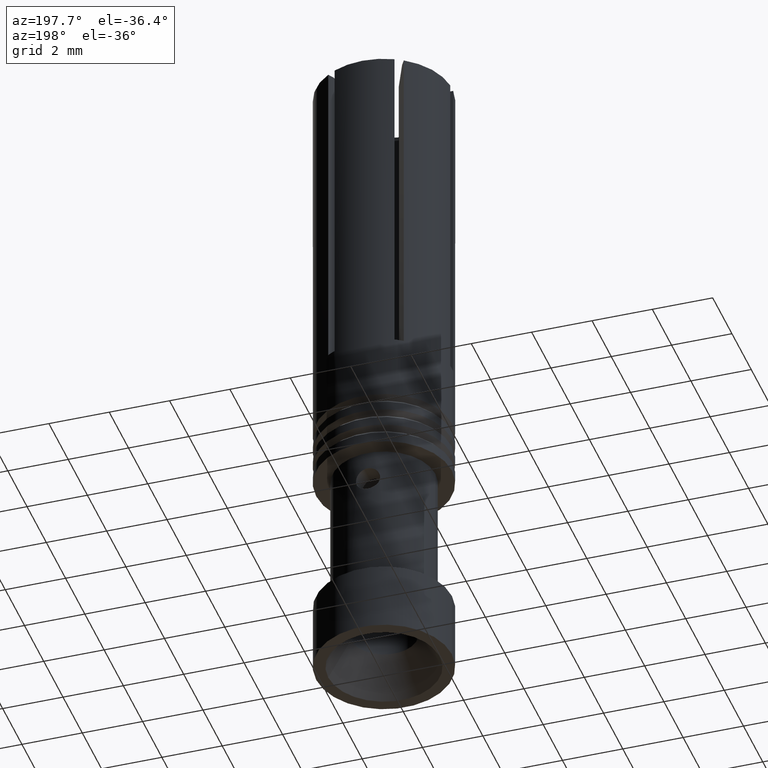
[diagram: clean part render]
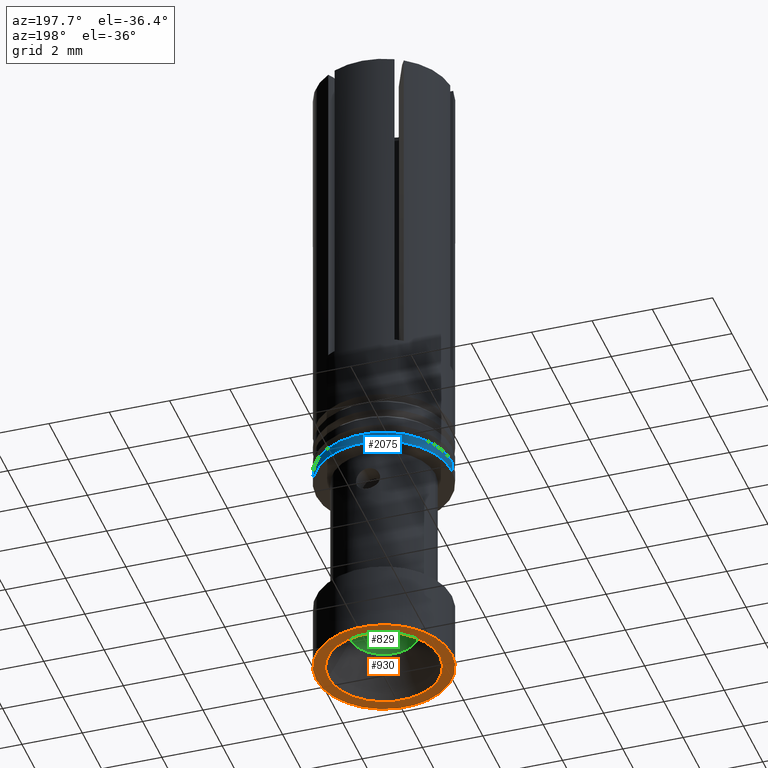
[diagram: same view with three faces highlighted in distinct colors, each labeled with its STEP entity id]
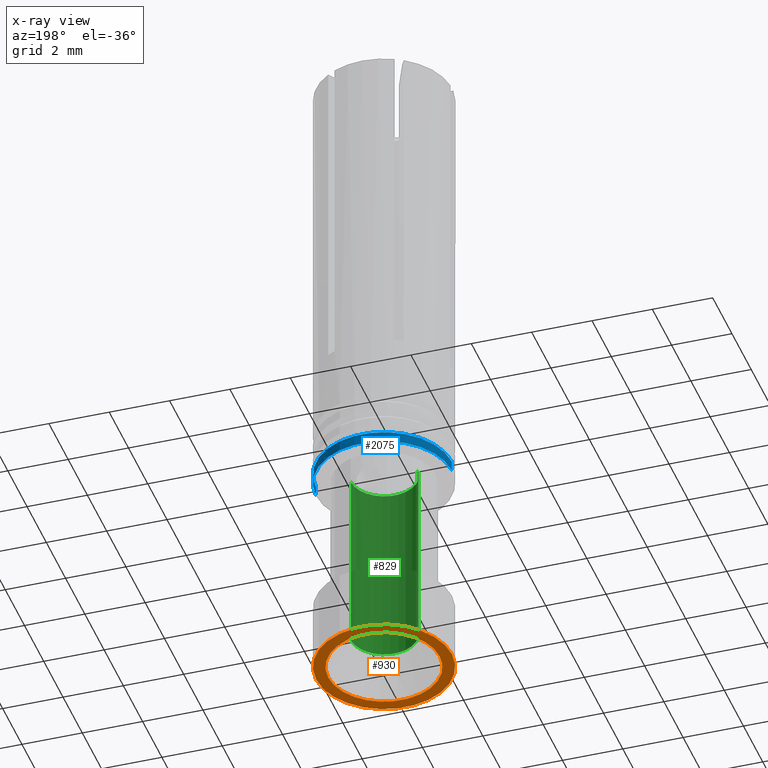
[diagram: x-ray of the same camera — body ghosted, the three highlighted faces saturated]
A machine part, auxiliary view with three faces highlighted in distinct colors.
The next image is the same camera in x-ray (body ghosted, the three faces saturated) — at least one of them is partly hidden behind the body in this view.
Their STEP definitions:

[orange] entity #930 — the highlighted planar face has unit normal (0, 0, -1).
#19 = AXIS2_PLACEMENT_3D ( 'NONE', #1542, #2044, #1874 ) ;
#93 = ORIENTED_EDGE ( 'NONE', *, *, #2128, .T. ) ;
#94 = EDGE_CURVE ( 'NONE', #1481, #842, #1304, .T. ) ;
#187 = CIRCLE ( 'NONE', #659, 1.850000000000000089 ) ;
#197 = ORIENTED_EDGE ( 'NONE', *, *, #94, .T. ) ;
#320 = AXIS2_PLACEMENT_3D ( 'NONE', #2027, #489, #1349 ) ;
#321 = CARTESIAN_POINT ( 'NONE',  ( 1.084202172485499997E-16, -1.084202172485499997E-16, 337.8000000000000114 ) ) ;
#371 = CARTESIAN_POINT ( 'NONE',  ( 0.000000000000000000, 0.000000000000000000, 337.8000000000000114 ) ) ;
#489 = DIRECTION ( 'NONE',  ( 0.000000000000000000, 0.000000000000000000, -1.000000000000000000 ) ) ;
#552 = EDGE_CURVE ( 'NONE', #1947, #2093, #810, .T. ) ;
#574 = EDGE_LOOP ( 'NONE', ( #197, #1780 ) ) ;
#659 = AXIS2_PLACEMENT_3D ( 'NONE', #321, #1206, #1055 ) ;
#802 = FACE_OUTER_BOUND ( 'NONE', #574, .T. ) ;
#810 = CIRCLE ( 'NONE', #1104, 1.850000000000000089 ) ;
#842 = VERTEX_POINT ( 'NONE', #970 ) ;
#895 = DIRECTION ( 'NONE',  ( 0.000000000000000000, 0.000000000000000000, -1.000000000000000000 ) ) ;
#930 = ADVANCED_FACE ( 'NONE', ( #1345, #802 ), #1364, .T. ) ;
#970 = CARTESIAN_POINT ( 'NONE',  ( -2.250000000000000000, 2.755455298081544285E-16, 337.8000000000000114 ) ) ;
#1010 = AXIS2_PLACEMENT_3D ( 'NONE', #371, #895, #1752 ) ;
#1055 = DIRECTION ( 'NONE',  ( -1.000000000000000000, 1.224646799147350002E-16, 0.000000000000000000 ) ) ;
#1104 = AXIS2_PLACEMENT_3D ( 'NONE', #1525, #2038, #1195 ) ;
#1150 = CARTESIAN_POINT ( 'NONE',  ( 2.250000000000000000, 0.000000000000000000, 337.8000000000000114 ) ) ;
#1195 = DIRECTION ( 'NONE',  ( -1.000000000000000000, 1.224646799147350002E-16, 0.000000000000000000 ) ) ;
#1206 = DIRECTION ( 'NONE',  ( 0.000000000000000000, 0.000000000000000000, 1.000000000000000000 ) ) ;
#1215 = EDGE_LOOP ( 'NONE', ( #93, #2103 ) ) ;
#1304 = CIRCLE ( 'NONE', #320, 2.250000000000000000 ) ;
#1345 = FACE_BOUND ( 'NONE', #1215, .T. ) ;
#1349 = DIRECTION ( 'NONE',  ( -1.000000000000000000, 0.000000000000000000, 0.000000000000000000 ) ) ;
#1364 = PLANE ( 'NONE',  #19 ) ;
#1403 = CARTESIAN_POINT ( 'NONE',  ( -1.850000000000000089, 1.181394405937097434E-16, 337.8000000000000114 ) ) ;
#1481 = VERTEX_POINT ( 'NONE', #1150 ) ;
#1525 = CARTESIAN_POINT ( 'NONE',  ( 1.084202172485499997E-16, -1.084202172485499997E-16, 337.8000000000000114 ) ) ;
#1542 = CARTESIAN_POINT ( 'NONE',  ( 0.000000000000000000, 0.000000000000000000, 337.8000000000000114 ) ) ;
#1682 = EDGE_CURVE ( 'NONE', #842, #1481, #1973, .T. ) ;
#1752 = DIRECTION ( 'NONE',  ( -1.000000000000000000, 0.000000000000000000, 0.000000000000000000 ) ) ;
#1780 = ORIENTED_EDGE ( 'NONE', *, *, #1682, .T. ) ;
#1874 = DIRECTION ( 'NONE',  ( 0.000000000000000000, -1.000000000000000000, 0.000000000000000000 ) ) ;
#1947 = VERTEX_POINT ( 'NONE', #2201 ) ;
#1973 = CIRCLE ( 'NONE', #1010, 2.250000000000000000 ) ;
#2027 = CARTESIAN_POINT ( 'NONE',  ( 0.000000000000000000, 0.000000000000000000, 337.8000000000000114 ) ) ;
#2038 = DIRECTION ( 'NONE',  ( 0.000000000000000000, 0.000000000000000000, 1.000000000000000000 ) ) ;
#2044 = DIRECTION ( 'NONE',  ( 0.000000000000000000, 0.000000000000000000, -1.000000000000000000 ) ) ;
#2093 = VERTEX_POINT ( 'NONE', #1403 ) ;
#2103 = ORIENTED_EDGE ( 'NONE', *, *, #552, .T. ) ;
#2128 = EDGE_CURVE ( 'NONE', #2093, #1947, #187, .T. ) ;
#2201 = CARTESIAN_POINT ( 'NONE',  ( 1.850000000000000089, -1.084202172485494080E-16, 337.8000000000000114 ) ) ;

[blue] entity #2075 — the highlighted cylindrical surface (partial cylindrical patch) has radius 2.25 mm, axis along (0, 0, 1).
#23 = EDGE_CURVE ( 'NONE', #1228, #2089, #1628, .T. ) ;
#72 = CARTESIAN_POINT ( 'NONE',  ( 2.250000000000000000, 0.000000000000000000, 345.0000000000000000 ) ) ;
#172 = CARTESIAN_POINT ( 'NONE',  ( -2.250000000000000000, 2.755455298081544285E-16, 345.0000000000000000 ) ) ;
#296 = CARTESIAN_POINT ( 'NONE',  ( 0.000000000000000000, 0.000000000000000000, 345.3499999999999659 ) ) ;
#471 = DIRECTION ( 'NONE',  ( 1.000000000000000000, 0.000000000000000000, 0.000000000000000000 ) ) ;
#475 = DIRECTION ( 'NONE',  ( 1.000000000000000000, 0.000000000000000000, 0.000000000000000000 ) ) ;
#482 = ORIENTED_EDGE ( 'NONE', *, *, #23, .F. ) ;
#562 = CIRCLE ( 'NONE', #1149, 2.250000000000000000 ) ;
#585 = CARTESIAN_POINT ( 'NONE',  ( -2.250000000000000000, 0.000000000000000000, 345.3499999999999659 ) ) ;
#760 = DIRECTION ( 'NONE',  ( 0.000000000000000000, 0.000000000000000000, 1.000000000000000000 ) ) ;
#800 = VERTEX_POINT ( 'NONE', #585 ) ;
#803 = DIRECTION ( 'NONE',  ( 0.000000000000000000, 0.000000000000000000, 1.000000000000000000 ) ) ;
#882 = AXIS2_PLACEMENT_3D ( 'NONE', #2020, #2210, #471 ) ;
#1030 = EDGE_CURVE ( 'NONE', #1228, #2176, #562, .T. ) ;
#1081 = AXIS2_PLACEMENT_3D ( 'NONE', #296, #803, #475 ) ;
#1149 = AXIS2_PLACEMENT_3D ( 'NONE', #1909, #1418, #1751 ) ;
#1201 = DIRECTION ( 'NONE',  ( 0.000000000000000000, 0.000000000000000000, 1.000000000000000000 ) ) ;
#1228 = VERTEX_POINT ( 'NONE', #1323 ) ;
#1239 = EDGE_LOOP ( 'NONE', ( #1877, #1713, #1581, #482 ) ) ;
#1296 = CIRCLE ( 'NONE', #1081, 2.250000000000000000 ) ;
#1323 = CARTESIAN_POINT ( 'NONE',  ( 2.250000000000000000, 0.000000000000000000, 345.0000000000000000 ) ) ;
#1331 = LINE ( 'NONE', #1898, #2085 ) ;
#1341 = CYLINDRICAL_SURFACE ( 'NONE', #882, 2.250000000000000000 ) ;
#1418 = DIRECTION ( 'NONE',  ( 0.000000000000000000, 0.000000000000000000, 1.000000000000000000 ) ) ;
#1428 = EDGE_CURVE ( 'NONE', #2089, #800, #1296, .T. ) ;
#1453 = VECTOR ( 'NONE', #760, 1000.000000000000000 ) ;
#1496 = EDGE_CURVE ( 'NONE', #2176, #800, #1331, .T. ) ;
#1528 = FACE_OUTER_BOUND ( 'NONE', #1239, .T. ) ;
#1581 = ORIENTED_EDGE ( 'NONE', *, *, #1428, .F. ) ;
#1628 = LINE ( 'NONE', #72, #1453 ) ;
#1713 = ORIENTED_EDGE ( 'NONE', *, *, #1496, .T. ) ;
#1751 = DIRECTION ( 'NONE',  ( 1.000000000000000000, 0.000000000000000000, 0.000000000000000000 ) ) ;
#1877 = ORIENTED_EDGE ( 'NONE', *, *, #1030, .T. ) ;
#1898 = CARTESIAN_POINT ( 'NONE',  ( -2.250000000000000000, 2.755455298081544285E-16, 345.0000000000000000 ) ) ;
#1909 = CARTESIAN_POINT ( 'NONE',  ( 0.000000000000000000, 0.000000000000000000, 345.0000000000000000 ) ) ;
#2020 = CARTESIAN_POINT ( 'NONE',  ( 0.000000000000000000, 0.000000000000000000, 345.0000000000000000 ) ) ;
#2063 = CARTESIAN_POINT ( 'NONE',  ( 2.250000000000000000, 2.755455298081544285E-16, 345.3499999999999659 ) ) ;
#2075 = ADVANCED_FACE ( 'NONE', ( #1528 ), #1341, .T. ) ;
#2085 = VECTOR ( 'NONE', #1201, 1000.000000000000000 ) ;
#2089 = VERTEX_POINT ( 'NONE', #2063 ) ;
#2176 = VERTEX_POINT ( 'NONE', #172 ) ;
#2210 = DIRECTION ( 'NONE',  ( 0.000000000000000000, 0.000000000000000000, 1.000000000000000000 ) ) ;

[green] entity #829 — the highlighted cylindrical surface (edge-blend (fillet) strip) has radius 1.1 mm, axis along (0, 0, 1).
#1 = VERTEX_POINT ( 'NONE', #288 ) ;
#121 = DIRECTION ( 'NONE',  ( 0.000000000000000000, 0.000000000000000000, -1.000000000000000000 ) ) ;
#247 = DIRECTION ( 'NONE',  ( -1.000000000000000000, 0.000000000000000000, 0.000000000000000000 ) ) ;
#261 = VERTEX_POINT ( 'NONE', #1578 ) ;
#288 = CARTESIAN_POINT ( 'NONE',  ( -1.100000000000000089, 1.347111479062088503E-16, 339.0990381056770389 ) ) ;
#313 = CARTESIAN_POINT ( 'NONE',  ( 0.000000000000000000, 0.000000000000000000, 345.3000000000000114 ) ) ;
#381 = EDGE_CURVE ( 'NONE', #1, #2076, #1448, .T. ) ;
#384 = CIRCLE ( 'NONE', #1442, 1.100000000000000089 ) ;
#597 = LINE ( 'NONE', #1135, #2152 ) ;
#708 = AXIS2_PLACEMENT_3D ( 'NONE', #1808, #1950, #2167 ) ;
#749 = ORIENTED_EDGE ( 'NONE', *, *, #923, .F. ) ;
#825 = EDGE_CURVE ( 'NONE', #1, #1146, #597, .T. ) ;
#829 = ADVANCED_FACE ( 'NONE', ( #1449 ), #1126, .F. ) ;
#918 = EDGE_CURVE ( 'NONE', #261, #1146, #384, .T. ) ;
#923 = EDGE_CURVE ( 'NONE', #2076, #261, #1329, .T. ) ;
#929 = DIRECTION ( 'NONE',  ( 0.000000000000000000, 0.000000000000000000, 1.000000000000000000 ) ) ;
#965 = CARTESIAN_POINT ( 'NONE',  ( -1.100000000000000089, 1.347111479062088503E-16, 345.3000000000000114 ) ) ;
#1002 = DIRECTION ( 'NONE',  ( 1.000000000000000000, 0.000000000000000000, 0.000000000000000000 ) ) ;
#1013 = ORIENTED_EDGE ( 'NONE', *, *, #825, .T. ) ;
#1126 = CYLINDRICAL_SURFACE ( 'NONE', #708, 1.100000000000000089 ) ;
#1135 = CARTESIAN_POINT ( 'NONE',  ( -1.100000000000000089, 1.347111479062088503E-16, 337.8000000000000114 ) ) ;
#1146 = VERTEX_POINT ( 'NONE', #965 ) ;
#1166 = CARTESIAN_POINT ( 'NONE',  ( 1.100000000000000089, 0.000000000000000000, 339.0990381056770389 ) ) ;
#1288 = DIRECTION ( 'NONE',  ( 0.000000000000000000, 0.000000000000000000, 1.000000000000000000 ) ) ;
#1305 = ORIENTED_EDGE ( 'NONE', *, *, #918, .F. ) ;
#1320 = CARTESIAN_POINT ( 'NONE',  ( 1.084202172485499997E-16, -1.084202172485499997E-16, 339.0990381056770389 ) ) ;
#1329 = LINE ( 'NONE', #2012, #1718 ) ;
#1442 = AXIS2_PLACEMENT_3D ( 'NONE', #313, #121, #1002 ) ;
#1448 = CIRCLE ( 'NONE', #2087, 1.100000000000000089 ) ;
#1449 = FACE_OUTER_BOUND ( 'NONE', #1484, .T. ) ;
#1484 = EDGE_LOOP ( 'NONE', ( #2088, #1013, #1305, #749 ) ) ;
#1513 = DIRECTION ( 'NONE',  ( 0.000000000000000000, 0.000000000000000000, 1.000000000000000000 ) ) ;
#1578 = CARTESIAN_POINT ( 'NONE',  ( 1.100000000000000089, 0.000000000000000000, 345.3000000000000114 ) ) ;
#1718 = VECTOR ( 'NONE', #1513, 1000.000000000000000 ) ;
#1808 = CARTESIAN_POINT ( 'NONE',  ( 0.000000000000000000, 0.000000000000000000, 337.8000000000000114 ) ) ;
#1950 = DIRECTION ( 'NONE',  ( 0.000000000000000000, 0.000000000000000000, 1.000000000000000000 ) ) ;
#2012 = CARTESIAN_POINT ( 'NONE',  ( 1.100000000000000089, 0.000000000000000000, 337.8000000000000114 ) ) ;
#2076 = VERTEX_POINT ( 'NONE', #1166 ) ;
#2087 = AXIS2_PLACEMENT_3D ( 'NONE', #1320, #1288, #247 ) ;
#2088 = ORIENTED_EDGE ( 'NONE', *, *, #381, .F. ) ;
#2152 = VECTOR ( 'NONE', #929, 1000.000000000000000 ) ;
#2167 = DIRECTION ( 'NONE',  ( 1.000000000000000000, 0.000000000000000000, 0.000000000000000000 ) ) ;